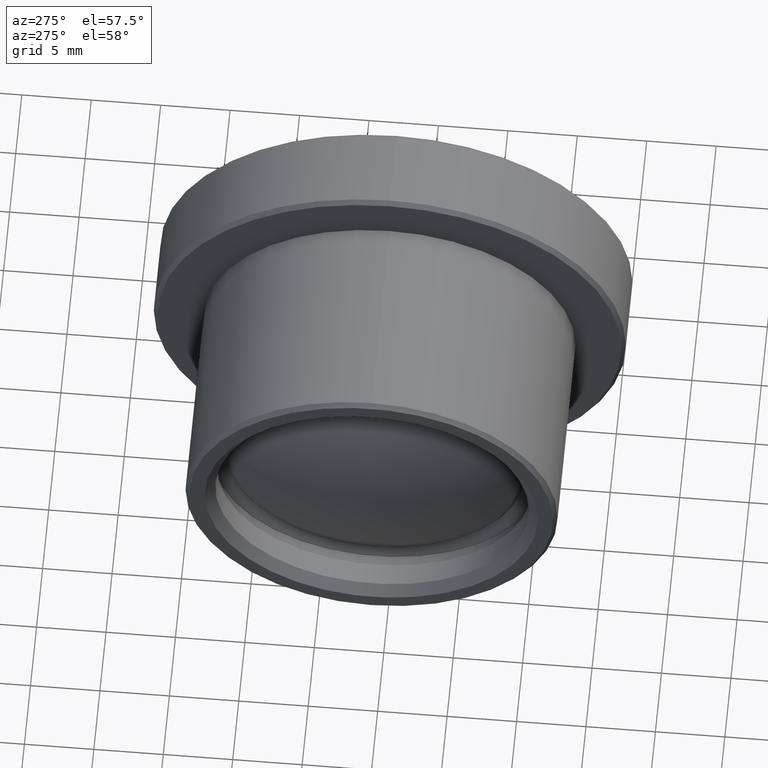
[diagram: clean part render]
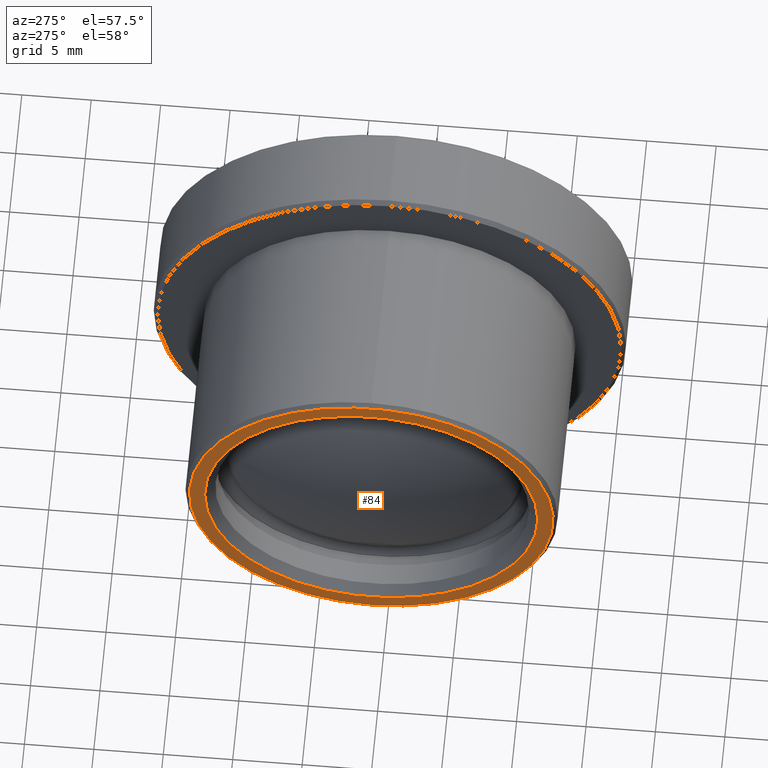
[diagram: same view with one face highlighted and labeled with its STEP entity id]
A machine part, auxiliary view. The second image highlights one B-rep face of the part: STEP entity #84.
In plain terms, the highlighted planar face has unit normal (1, -0, 0).
Its self-contained STEP definition (entity closure, byte-faithful):
#9 = AXIS2_PLACEMENT_3D ( 'NONE', #445, #175, #96 ) ;
#46 = CARTESIAN_POINT ( 'NONE',  ( 7640.980875767964790, -204.0133495471515630, -13.09999999999581455 ) ) ;
#48 = DIRECTION ( 'NONE',  ( 1.000000000000000000, -0.000000000000000000, 0.000000000000000000 ) ) ;
#54 = AXIS2_PLACEMENT_3D ( 'NONE', #412, #253, #404 ) ;
#70 = ORIENTED_EDGE ( 'NONE', *, *, #338, .F. ) ;
#84 = ADVANCED_FACE ( 'NONE', ( #459, #309 ), #315, .F. ) ;
#96 = DIRECTION ( 'NONE',  ( 0.000000000000000000, 0.000000000000000000, -1.000000000000000000 ) ) ;
#138 = EDGE_LOOP ( 'NONE', ( #70 ) ) ;
#154 = VERTEX_POINT ( 'NONE', #46 ) ;
#175 = DIRECTION ( 'NONE',  ( 1.000000000000000000, 0.000000000000000000, 0.000000000000000000 ) ) ;
#192 = CARTESIAN_POINT ( 'NONE',  ( 7640.980875767964790, -190.9133495471557467, 0.000000000000000000 ) ) ;
#253 = DIRECTION ( 'NONE',  ( -1.000000000000000000, -3.700743415416954124E-14, -0.000000000000000000 ) ) ;
#263 = EDGE_LOOP ( 'NONE', ( #372 ) ) ;
#275 = CARTESIAN_POINT ( 'NONE',  ( 7640.980875767965699, -216.0133495471523304, 0.000000000000000000 ) ) ;
#309 = FACE_BOUND ( 'NONE', #263, .T. ) ;
#315 = PLANE ( 'NONE',  #388 ) ;
#338 = EDGE_CURVE ( 'NONE', #154, #154, #431, .T. ) ;
#344 = EDGE_CURVE ( 'NONE', #496, #496, #458, .T. ) ;
#372 = ORIENTED_EDGE ( 'NONE', *, *, #344, .F. ) ;
#388 = AXIS2_PLACEMENT_3D ( 'NONE', #192, #48, #419 ) ;
#404 = DIRECTION ( 'NONE',  ( 7.401486830833908248E-14, -1.000000000000000000, 0.000000000000000000 ) ) ;
#412 = CARTESIAN_POINT ( 'NONE',  ( 7640.980875767964790, -204.0133495471515630, 0.000000000000000000 ) ) ;
#419 = DIRECTION ( 'NONE',  ( 0.000000000000000000, 0.000000000000000000, -1.000000000000000000 ) ) ;
#431 = CIRCLE ( 'NONE', #9, 13.09999999999581455 ) ;
#445 = CARTESIAN_POINT ( 'NONE',  ( 7640.980875767964790, -204.0133495471515630, 0.000000000000000000 ) ) ;
#458 = CIRCLE ( 'NONE', #54, 12.00000000000076028 ) ;
#459 = FACE_OUTER_BOUND ( 'NONE', #138, .T. ) ;
#496 = VERTEX_POINT ( 'NONE', #275 ) ;